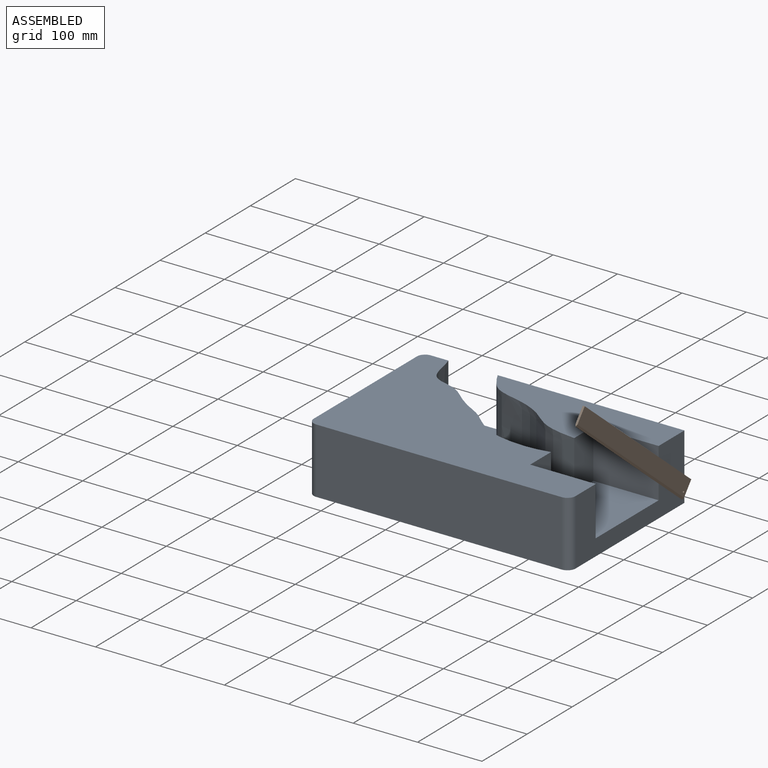
[diagram: assembled view]
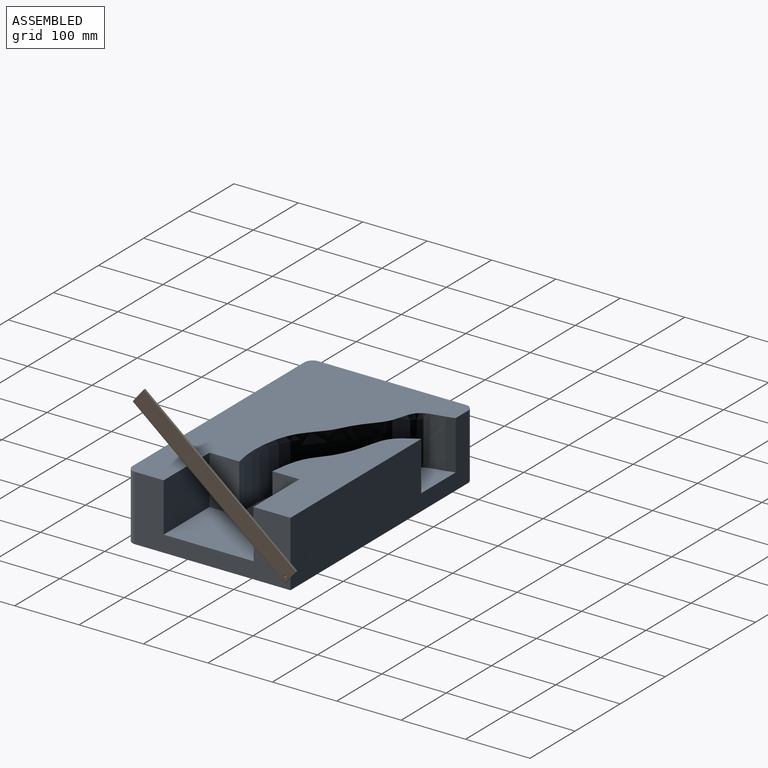
[diagram: assembled view, second angle]
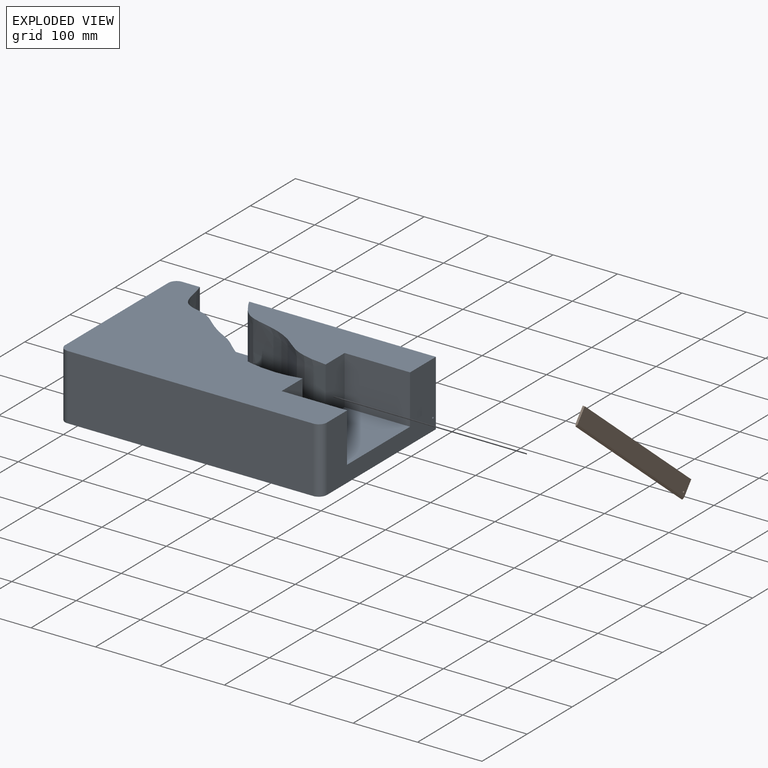
[diagram: exploded view]
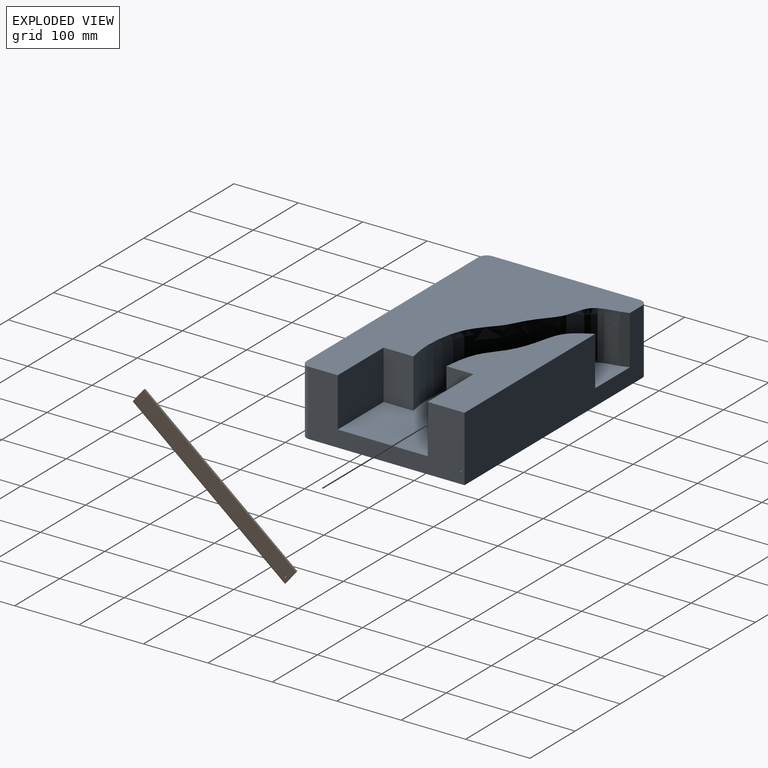
[diagram: exploded view, second angle]
ASSEMBLY  parts=2 mates=2
PART A: 19 faces, bbox 406.4x254x101.6 mm
  f0: plane 241.3x101.6mm, normal (1,0,0), area 13863mm2, adj f1,f2,f3,f6,f7,f12,f13,f14
  f1: plane 393.7x101.6mm, normal (0,1,0), area 34172.2mm2, adj f0,f2,f3,f6,f9,f10,f13,f15
  f2: plane 289.88x99.29mm, normal (0,0,1), area 17440.8mm2, adj f0,f1,f7,f8,f9
  f3: plane 406.4x254mm, normal (0,0,1), area 53739.2mm2, adj f0,f1,f4,f5,f10,f11,f12,f14
  f4: plane 381x101.6mm, normal (0,-1,0), area 38709.6mm2, adj f3,f6,f14,f16
  f5: plane 228.6x101.6mm, normal (-1,0,0), area 23225.8mm2, adj f3,f6,f15,f16
  f6: plane 406.4x254mm, normal (0,0,-1), area 103121.8mm2, adj f0,f1,f4,f5,f14,f15,f16
  f7: plane 101.6x76.2mm, normal (0,-1,0), area 7741.9mm2, adj f0,f2,f8,f13
  f8: plane 76.2x42.14mm, normal (1,0,0), area 3210.7mm2, adj f2,f7,f9,f13
  f9: extruded ~188.28x99.29mm, area 16826.9mm2, adj f1,f2,f8,f13
  f10: extruded ~264.76x155.13mm, area 25296.6mm2, adj f1,f3,f11,f13
  f11: plane 76.2x46.23mm, normal (1,0,0), area 3522.6mm2, adj f3,f10,f12,f13
  f12: plane 101.6x76.2mm, normal (0,1,0), area 7741.9mm2, adj f0,f3,f11,f13
  f13: plane 366.36x196.85mm, normal (0,0,1), area 31941.4mm2, adj f0,f1,f7,f8,f9,f10,f11,f12
  f14: cylinder r=12.7mm len=101.6mm, axis (0,0,-1), area 2026.8mm2, adj f0,f3,f4,f6
  f15: cylinder r=12.7mm len=101.6mm, axis (0,0,-1), area 2026.8mm2, adj f1,f3,f5,f6
  f16: cylinder r=12.7mm len=101.6mm, axis (0,0,1), area 2026.8mm2, adj f3,f4,f5,f6
  f17: cylinder r=1.59mm len=50.8mm, axis (1,0,0), area 506.7mm2, adj f0,f18
  f18: plane 3.18x3.18mm, normal (1,0,0), area 7.9mm2, adj f17
PART B: 8 faces, bbox 3.2x304.8x28.6 mm
  f0: plane 304.8x25.4mm, normal (1,0,0), area 7734mm2, adj f1,f4,f5,f6,f7
  f1: plane 304.8x3.18mm, normal (0,0,1), area 967.7mm2, adj f0,f2,f5,f6
  f2: plane 304.8x25.4mm, normal (-1,0,0), area 7734mm2, adj f1,f3,f5,f6,f7
  f3: plane 304.8x3.18mm, normal (-0.89,0,-0.45), area 1082mm2, adj f2,f4,f5,f6
  f4: plane 304.8x3.18mm, normal (0.89,0,-0.45), area 1082mm2, adj f0,f3,f5,f6
  f5: plane 28.58x3.18mm, normal (0,1,0), area 85.7mm2, adj f0,f1,f2,f3,f4
  f6: plane 28.58x3.18mm, normal (0,-1,0), area 85.7mm2, adj f0,f1,f2,f3,f4
  f7: cylinder r=1.59mm len=3.18mm, axis (1,0,0), area 31.7mm2, adj f0,f2
PLACE A t=(-28.42,-56.51,-9.36)mm fixed
PLACE B rot(axis=(-1,0,0),39.2deg) t=(176.37,-163.07,101.71)mm
MATE planar A.f0 <-> B.f2  axis (1,0,0) through (174.78,-45.35,-69.89)mm
MATE cylindrical A.f17 <-> B.f7  axis (1,0,0) through (149.38,64.14,-91.91)mm
